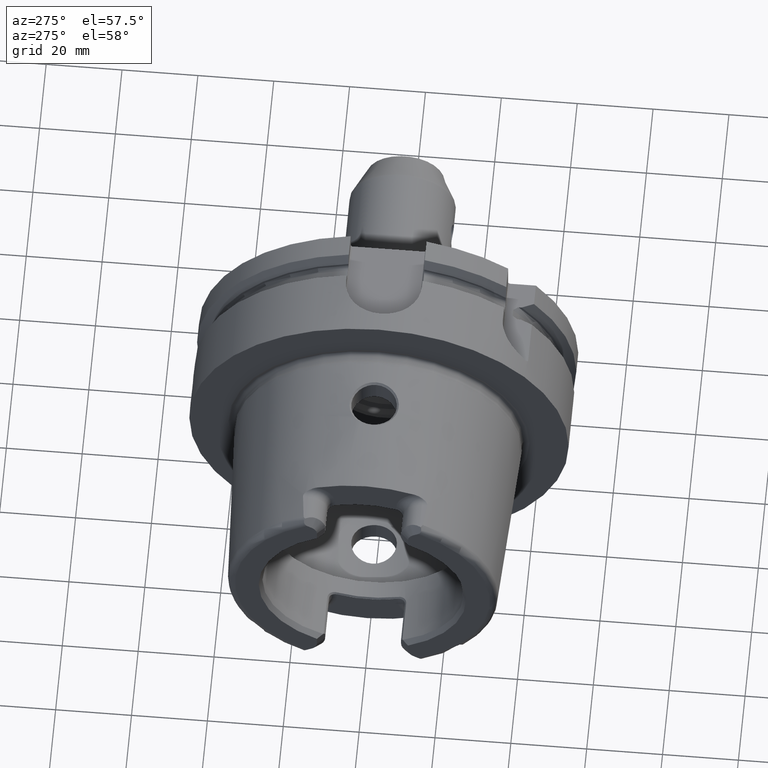
[diagram: clean part render]
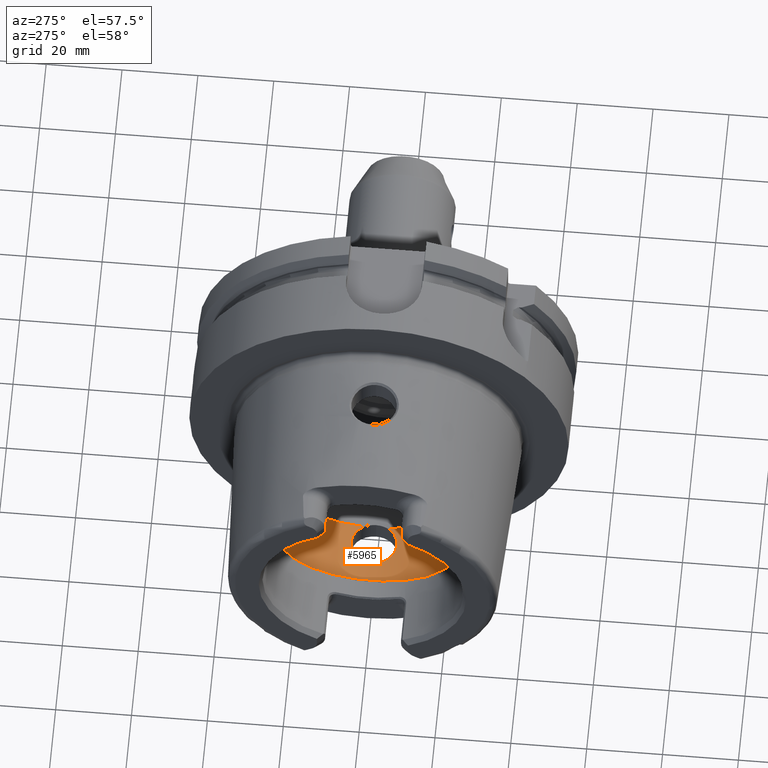
[diagram: same view with one face highlighted and labeled with its STEP entity id]
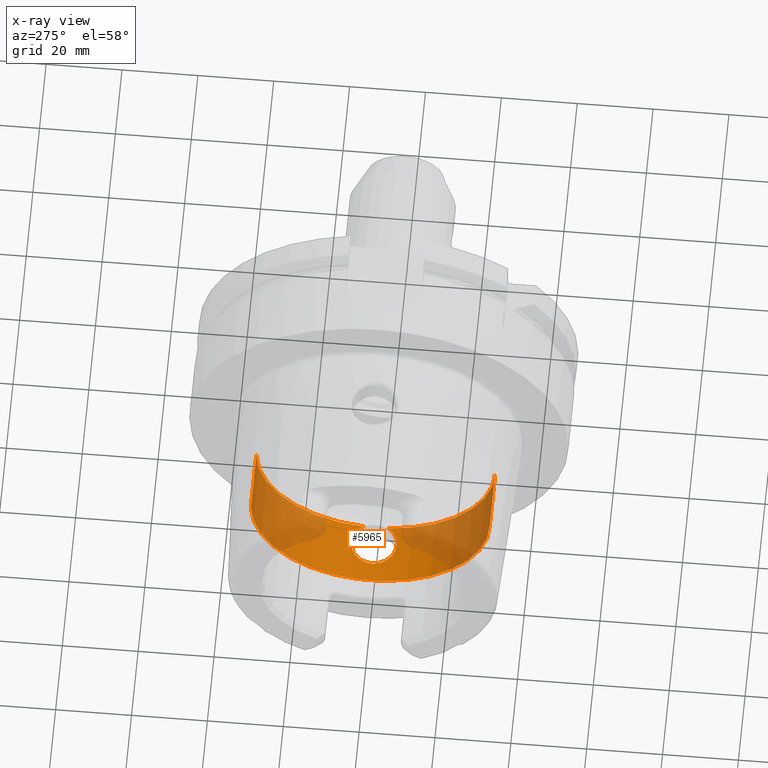
[diagram: x-ray of the same camera — body ghosted, the highlighted face saturated]
A machine part, auxiliary view. The second image highlights one B-rep face of the part: STEP entity #5965.
The next image is the same camera in x-ray: the body ghosted, the highlighted face saturated — about 58% of this face is hidden behind the body in this view.
In plain terms, the highlighted cylindrical surface (partial cylindrical patch) has radius 31.5 mm, axis along (1, 0, 0).
Its self-contained STEP definition (entity closure, byte-faithful):
#2289=CARTESIAN_POINT('',(-2.1E1,0.E0,-3.15E1));
#2290=CARTESIAN_POINT('',(-2.1E1,2.600323061180E-1,-3.15E1));
#2291=CARTESIAN_POINT('',(-2.096661770669E1,7.780092125203E-1,
-3.149361511448E1));
#2292=CARTESIAN_POINT('',(-2.081253217207E1,1.557831356964E0,
-3.146462024253E1));
#2293=CARTESIAN_POINT('',(-2.055574570683E1,2.311276553665E0,
-3.141793916189E1));
#2294=CARTESIAN_POINT('',(-2.020626936033E1,3.016750289566E0,
-3.135769789056E1));
#2295=CARTESIAN_POINT('',(-1.976601122444E1,3.673722414515E0,
-3.128719166027E1));
#2296=CARTESIAN_POINT('',(-1.923610094251E1,4.274362244914E0,
-3.121038529168E1));
#2297=CARTESIAN_POINT('',(-1.863192887465E1,4.797669158712E0,
-3.113374177159E1));
#2298=CARTESIAN_POINT('',(-1.797705422937E1,5.228767812436E0,
-3.106381618043E1));
#2299=CARTESIAN_POINT('',(-1.727328312497E1,5.571149218893E0,
-3.100390713215E1));
#2300=CARTESIAN_POINT('',(-1.652528168161E1,5.820750549838E0,
-3.095774716752E1));
#2301=CARTESIAN_POINT('',(-1.575298047354E1,5.969558117876E0,
-3.092922682144E1));
#2302=CARTESIAN_POINT('',(-1.497973962537E1,6.016520952670E0,
-3.092007277754E1));
#2303=CARTESIAN_POINT('',(-1.420754911889E1,5.964156360884E0,
-3.093027435868E1));
#2304=CARTESIAN_POINT('',(-1.345027932885E1,5.813467932253E0,
-3.095911415652E1));
#2305=CARTESIAN_POINT('',(-1.271967870279E1,5.567549612701E0,
-3.100453585674E1));
#2306=CARTESIAN_POINT('',(-1.202654252881E1,5.230424035329E0,
-3.106352122481E1));
#2307=CARTESIAN_POINT('',(-1.137895123984E1,4.805016643732E0,
-3.113255162345E1));
#2308=CARTESIAN_POINT('',(-1.079033967049E1,4.298901630879E0,
-3.120689445852E1));
#2309=CARTESIAN_POINT('',(-1.027063116687E1,3.719239024479E0,
-3.128166258912E1));
#2310=CARTESIAN_POINT('',(-9.979348326781E0,3.295456177510E0,
-3.132794036358E1));
#2311=CARTESIAN_POINT('',(-9.846794344809E0,3.073185883624E0,
-3.134972932139E1));
#2313=CARTESIAN_POINT('',(-9.846794344809E0,-3.073185883624E0,
-3.134972932139E1));
#2314=CARTESIAN_POINT('',(-9.980267592034E0,-3.296997627679E0,
-3.132778925661E1));
#2315=CARTESIAN_POINT('',(-1.027428374945E1,-3.724632451493E0,
-3.128107498049E1));
#2316=CARTESIAN_POINT('',(-1.080444609373E1,-4.313598102782E0,
-3.120491822807E1));
#2317=CARTESIAN_POINT('',(-1.140518288188E1,-4.825083200941E0,
-3.112945268139E1));
#2318=CARTESIAN_POINT('',(-1.205830347901E1,-5.248491279341E0,
-3.106046243563E1));
#2319=CARTESIAN_POINT('',(-1.275973274351E1,-5.584361629649E0,
-3.100151169777E1));
#2320=CARTESIAN_POINT('',(-1.350804961755E1,-5.829351893619E0,
-3.095611954416E1));
#2321=CARTESIAN_POINT('',(-1.428046132242E1,-5.973692441151E0,
-3.092842373405E1));
#2322=CARTESIAN_POINT('',(-1.505471261768E1,-6.016295068305E0,
-3.092011685270E1));
#2323=CARTESIAN_POINT('',(-1.582807827324E1,-5.959638584634E0,
-3.093115085218E1));
#2324=CARTESIAN_POINT('',(-1.659844154856E1,-5.801063635706E0,
-3.096146461693E1));
#2325=CARTESIAN_POINT('',(-1.734174730538E1,-5.542557460315E0,
-3.100905659353E1));
#2326=CARTESIAN_POINT('',(-1.803699861300E1,-5.193928840565E0,
-3.106968398001E1));
#2327=CARTESIAN_POINT('',(-1.868261407792E1,-4.758494760219E0,
-3.113976584786E1));
#2328=CARTESIAN_POINT('',(-1.927492183405E1,-4.234938547310E0,
-3.121575046881E1));
#2329=CARTESIAN_POINT('',(-1.979338991235E1,-3.637181048324E0,
-3.129142862807E1));
#2330=CARTESIAN_POINT('',(-2.022350943177E1,-2.985970626913E0,
-3.136060026546E1));
#2331=CARTESIAN_POINT('',(-2.056558062715E1,-2.286490117879E0,
-3.141969944443E1));
#2332=CARTESIAN_POINT('',(-2.081663060842E1,-1.540888222611E0,
-3.146538707330E1));
#2333=CARTESIAN_POINT('',(-2.096737197130E1,-7.693136660163E-1,
-3.149375977797E1));
#2334=CARTESIAN_POINT('',(-2.1E1,-2.570924323293E-1,-3.15E1));
#2335=CARTESIAN_POINT('',(-2.1E1,0.E0,-3.15E1));
#2337=CARTESIAN_POINT('',(-9.846794344809E0,0.E0,0.E0));
#2338=DIRECTION('',(-1.E0,0.E0,0.E0));
#2339=DIRECTION('',(0.E0,-9.756145662299E-2,-9.952295022665E-1));
#2340=AXIS2_PLACEMENT_3D('',#2337,#2338,#2339);
#2342=DIRECTION('',(-1.E0,0.E0,0.E0));
#2343=VECTOR('',#2342,1.640380457843E1);
#2344=CARTESIAN_POINT('',(-9.846794344809E0,-3.15E1,0.E0));
#2345=LINE('',#2344,#2343);
#2346=DIRECTION('',(-1.E0,0.E0,0.E0));
#2347=VECTOR('',#2346,1.640380457843E1);
#2348=CARTESIAN_POINT('',(-9.846794344809E0,3.15E1,0.E0));
#2349=LINE('',#2348,#2347);
#2350=CARTESIAN_POINT('',(-9.846794344809E0,0.E0,0.E0));
#2351=DIRECTION('',(-1.E0,0.E0,0.E0));
#2352=DIRECTION('',(0.E0,1.E0,0.E0));
#2353=AXIS2_PLACEMENT_3D('',#2350,#2351,#2352);
#2355=CARTESIAN_POINT('',(-9.846794344809E0,3.073185883624E0,
-3.134972932139E1));
#2386=CARTESIAN_POINT('',(-9.846794344809E0,-3.073185883624E0,
-3.134972932139E1));
#2589=CARTESIAN_POINT('',(-2.625059892324E1,0.E0,0.E0));
#2590=DIRECTION('',(-1.E0,0.E0,0.E0));
#2591=DIRECTION('',(0.E0,1.E0,0.E0));
#2592=AXIS2_PLACEMENT_3D('',#2589,#2590,#2591);
#2881=CARTESIAN_POINT('',(-9.846794344809E0,3.15E1,0.E0));
#2882=VERTEX_POINT('',#2881);
#2883=CARTESIAN_POINT('',(-2.625059892324E1,3.15E1,0.E0));
#2884=VERTEX_POINT('',#2883);
#2893=CARTESIAN_POINT('',(-9.846794344809E0,-3.15E1,0.E0));
#2894=VERTEX_POINT('',#2893);
#2895=CARTESIAN_POINT('',(-2.625059892324E1,-3.15E1,0.E0));
#2896=VERTEX_POINT('',#2895);
#3064=VERTEX_POINT('',#2355);
#3066=VERTEX_POINT('',#2386);
#3067=VERTEX_POINT('',#2289);
#5948=CARTESIAN_POINT('',(-5.3125E1,0.E0,0.E0));
#5949=DIRECTION('',(1.E0,0.E0,0.E0));
#5950=DIRECTION('',(0.E0,-1.E0,0.E0));
#5951=AXIS2_PLACEMENT_3D('',#5948,#5949,#5950);
#5952=CYLINDRICAL_SURFACE('',#5951,3.15E1);
#5953=ORIENTED_EDGE('',*,*,#5902,.F.);
#5954=ORIENTED_EDGE('',*,*,#5630,.F.);
#5956=ORIENTED_EDGE('',*,*,#5955,.T.);
#5957=ORIENTED_EDGE('',*,*,#5941,.T.);
#5959=ORIENTED_EDGE('',*,*,#5958,.F.);
#5960=ORIENTED_EDGE('',*,*,#5937,.F.);
#5962=ORIENTED_EDGE('',*,*,#5961,.T.);
#5963=EDGE_LOOP('',(#5953,#5954,#5956,#5957,#5959,#5960,#5962));
#5964=FACE_OUTER_BOUND('',#5963,.F.);
#5965=ADVANCED_FACE('',(#5964),#5952,.F.);
#2312=B_SPLINE_CURVE_WITH_KNOTS('',3,(#2289,#2290,#2291,#2292,#2293,#2294,#2295,
#2296,#2297,#2298,#2299,#2300,#2301,#2302,#2303,#2304,#2305,#2306,#2307,#2308,
#2309,#2310,#2311),.UNSPECIFIED.,.F.,.F.,(4,1,1,1,1,1,1,1,1,1,1,1,1,1,1,1,1,1,1,
1,4),(0.E0,5.E-2,1.E-1,1.5E-1,2.E-1,2.5E-1,3.E-1,3.5E-1,4.E-1,4.5E-1,5.E-1,
5.5E-1,6.E-1,6.5E-1,7.E-1,7.5E-1,8.E-1,8.5E-1,9.E-1,9.5E-1,1.E0),.UNSPECIFIED.);
#2336=B_SPLINE_CURVE_WITH_KNOTS('',3,(#2313,#2314,#2315,#2316,#2317,#2318,#2319,
#2320,#2321,#2322,#2323,#2324,#2325,#2326,#2327,#2328,#2329,#2330,#2331,#2332,
#2333,#2334,#2335),.UNSPECIFIED.,.F.,.F.,(4,1,1,1,1,1,1,1,1,1,1,1,1,1,1,1,1,1,1,
1,4),(0.E0,5.E-2,1.E-1,1.5E-1,2.E-1,2.5E-1,3.E-1,3.5E-1,4.E-1,4.5E-1,5.E-1,
5.5E-1,6.E-1,6.5E-1,7.E-1,7.5E-1,8.E-1,8.5E-1,9.E-1,9.5E-1,1.E0),.UNSPECIFIED.);
#2341=CIRCLE('',#2340,3.15E1);
#2354=CIRCLE('',#2353,3.15E1);
#2593=CIRCLE('',#2592,3.15E1);
#5630=EDGE_CURVE('',#3066,#3067,#2336,.T.);
#5902=EDGE_CURVE('',#3067,#3064,#2312,.T.);
#5937=EDGE_CURVE('',#2882,#2884,#2349,.T.);
#5941=EDGE_CURVE('',#2894,#2896,#2345,.T.);
#5955=EDGE_CURVE('',#3066,#2894,#2341,.T.);
#5958=EDGE_CURVE('',#2884,#2896,#2593,.T.);
#5961=EDGE_CURVE('',#2882,#3064,#2354,.T.);